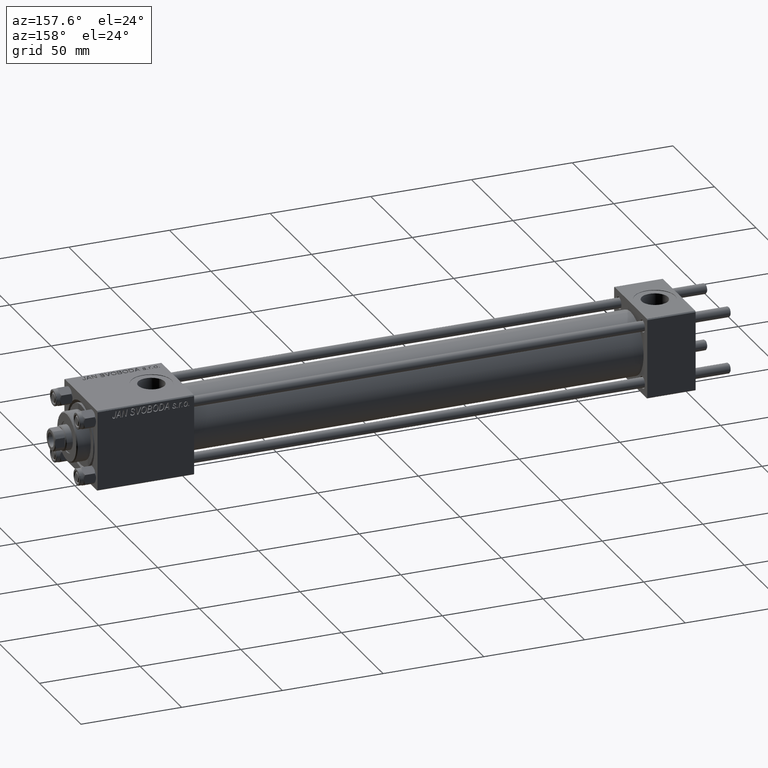
[diagram: clean part render]
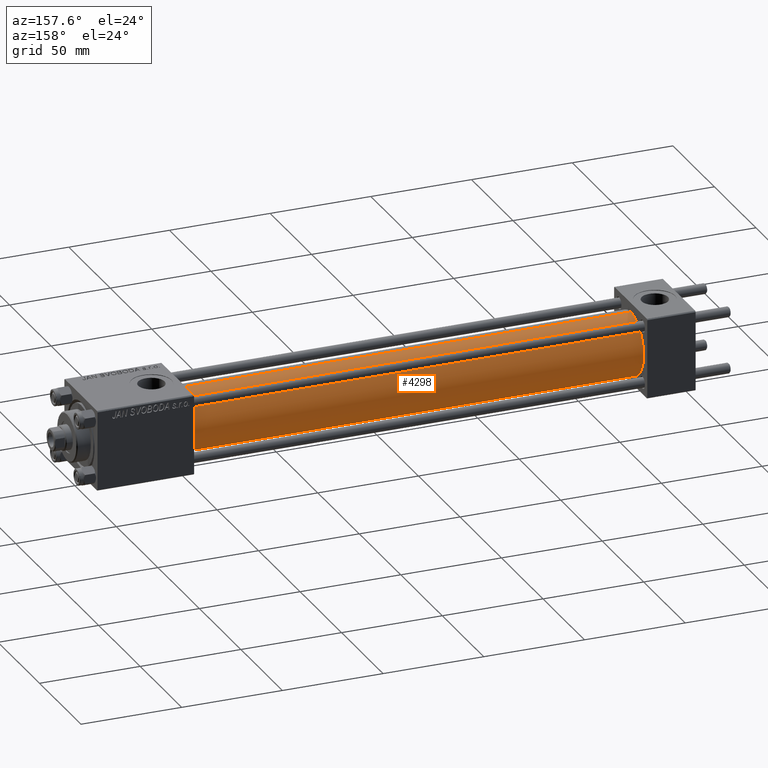
[diagram: same view with one face highlighted and labeled with its STEP entity id]
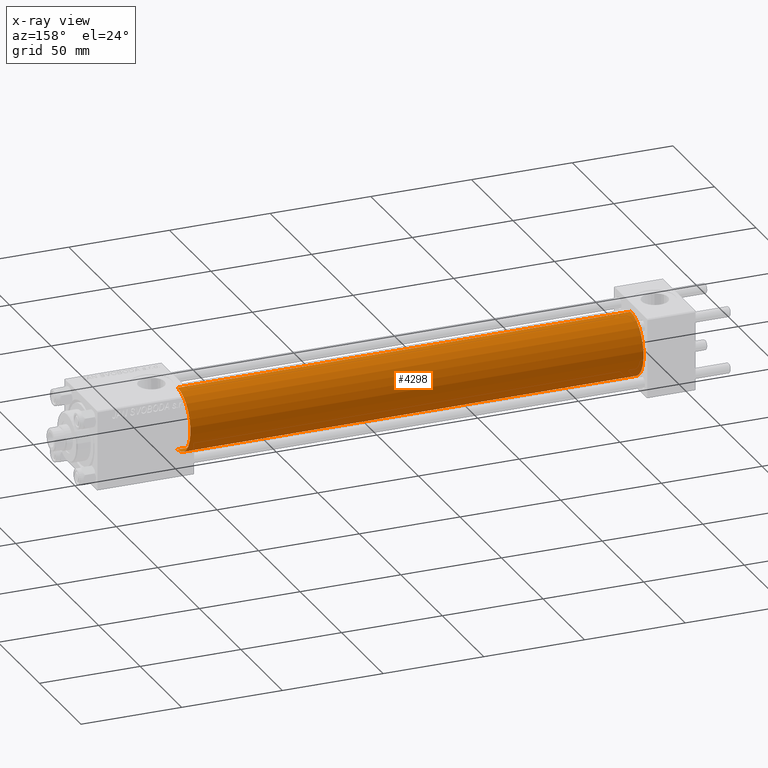
[diagram: x-ray of the same camera — body ghosted, the highlighted face saturated]
A machine part, auxiliary view. The second image highlights one B-rep face of the part: STEP entity #4298.
The next image is the same camera in x-ray: the body ghosted, the highlighted face saturated — about 0% of this face is hidden behind the body in this view.
In plain terms, the highlighted cylindrical surface (edge-blend (fillet) strip) has radius 15.5 mm, axis along (-1, -0, -0).
Its self-contained STEP definition (entity closure, byte-faithful):
#2288 = EDGE_CURVE ( 'NONE', #20210, #33948, #49331, .T. ) ;
#3020 = DIRECTION ( 'NONE',  ( -1.000000000000000000, -0.000000000000000000, -0.000000000000000000 ) ) ;
#3428 = DIRECTION ( 'NONE',  ( -1.000000000000000000, -0.000000000000000000, -0.000000000000000000 ) ) ;
#4166 = CARTESIAN_POINT ( 'NONE',  ( 249.0000000000000000, 0.000000000000000000, 15.50000000000000000 ) ) ;
#4298 = ADVANCED_FACE ( 'NONE', ( #11816 ), #7565, .T. ) ;
#6871 = VERTEX_POINT ( 'NONE', #25671 ) ;
#7565 = CYLINDRICAL_SURFACE ( 'NONE', #25262, 15.50000000000000000 ) ;
#7745 = CARTESIAN_POINT ( 'NONE',  ( 23.99999999999999289, 0.000000000000000000, 15.50000000000000000 ) ) ;
#8052 = DIRECTION ( 'NONE',  ( -1.000000000000000000, -0.000000000000000000, -0.000000000000000000 ) ) ;
#8532 = DIRECTION ( 'NONE',  ( 0.000000000000000000, 0.000000000000000000, 1.000000000000000000 ) ) ;
#11816 = FACE_OUTER_BOUND ( 'NONE', #44918, .T. ) ;
#15597 = CARTESIAN_POINT ( 'NONE',  ( 249.0000000000000000, 0.000000000000000000, 0.000000000000000000 ) ) ;
#17059 = CARTESIAN_POINT ( 'NONE',  ( 249.0000000000000000, 0.000000000000000000, 0.000000000000000000 ) ) ;
#18595 = EDGE_CURVE ( 'NONE', #20210, #6871, #46412, .T. ) ;
#19925 = DIRECTION ( 'NONE',  ( 0.000000000000000000, 0.000000000000000000, 1.000000000000000000 ) ) ;
#20210 = VERTEX_POINT ( 'NONE', #39854 ) ;
#20722 = ORIENTED_EDGE ( 'NONE', *, *, #21300, .T. ) ;
#21021 = ORIENTED_EDGE ( 'NONE', *, *, #34847, .F. ) ;
#21300 = EDGE_CURVE ( 'NONE', #33948, #26673, #36030, .T. ) ;
#24257 = ORIENTED_EDGE ( 'NONE', *, *, #18595, .F. ) ;
#25262 = AXIS2_PLACEMENT_3D ( 'NONE', #15597, #8052, #8532 ) ;
#25671 = CARTESIAN_POINT ( 'NONE',  ( 249.0000000000000000, 0.000000000000000000, 15.50000000000000000 ) ) ;
#25981 = VECTOR ( 'NONE', #3020, 1000.000000000000000 ) ;
#26673 = VERTEX_POINT ( 'NONE', #7745 ) ;
#26830 = LINE ( 'NONE', #4166, #38784 ) ;
#27011 = CARTESIAN_POINT ( 'NONE',  ( 23.99999999999999289, 0.000000000000000000, 0.000000000000000000 ) ) ;
#28942 = ORIENTED_EDGE ( 'NONE', *, *, #2288, .T. ) ;
#33948 = VERTEX_POINT ( 'NONE', #35549 ) ;
#34335 = AXIS2_PLACEMENT_3D ( 'NONE', #17059, #44263, #36684 ) ;
#34847 = EDGE_CURVE ( 'NONE', #6871, #26673, #26830, .T. ) ;
#35549 = CARTESIAN_POINT ( 'NONE',  ( 23.99999999999999289, 1.898202538678397557E-15, -15.50000000000000000 ) ) ;
#36030 = CIRCLE ( 'NONE', #36869, 15.50000000000000000 ) ;
#36684 = DIRECTION ( 'NONE',  ( 0.000000000000000000, 0.000000000000000000, -1.000000000000000000 ) ) ;
#36740 = CARTESIAN_POINT ( 'NONE',  ( 249.0000000000000000, 1.898202538678397557E-15, -15.50000000000000000 ) ) ;
#36869 = AXIS2_PLACEMENT_3D ( 'NONE', #27011, #42615, #19925 ) ;
#38784 = VECTOR ( 'NONE', #3428, 1000.000000000000000 ) ;
#39854 = CARTESIAN_POINT ( 'NONE',  ( 249.0000000000000000, 1.898202538678397557E-15, -15.50000000000000000 ) ) ;
#42615 = DIRECTION ( 'NONE',  ( 1.000000000000000000, 0.000000000000000000, 0.000000000000000000 ) ) ;
#44263 = DIRECTION ( 'NONE',  ( 1.000000000000000000, 0.000000000000000000, 0.000000000000000000 ) ) ;
#44918 = EDGE_LOOP ( 'NONE', ( #24257, #28942, #20722, #21021 ) ) ;
#46412 = CIRCLE ( 'NONE', #34335, 15.50000000000000000 ) ;
#49331 = LINE ( 'NONE', #36740, #25981 ) ;